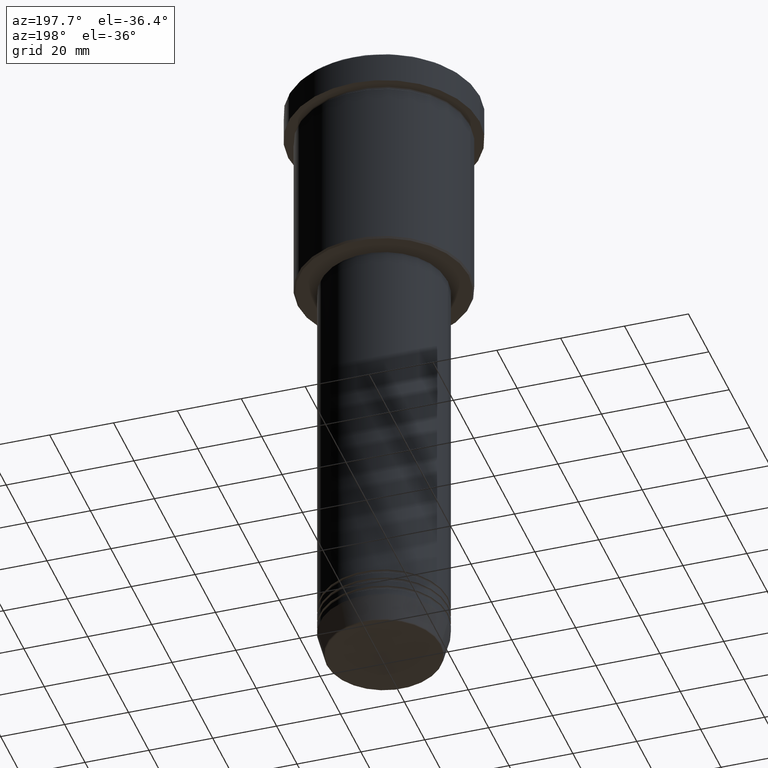
[diagram: clean part render]
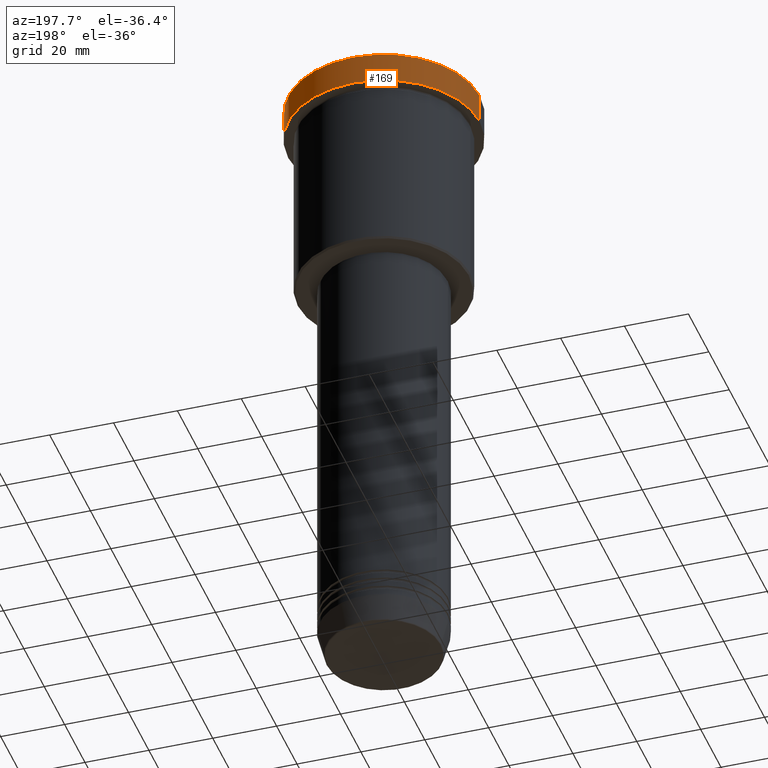
[diagram: same view with one face highlighted and labeled with its STEP entity id]
A machine part, auxiliary view. The second image highlights one B-rep face of the part: STEP entity #169.
In plain terms, the highlighted cylindrical surface (partial cylindrical patch) has radius 30 mm, axis along (-0, -0, 1).
Its self-contained STEP definition (entity closure, byte-faithful):
#1 = DIRECTION ( 'NONE',  ( 1.000000000000000000, 0.000000000000000000, 0.000000000000000000 ) ) ;
#12 = VECTOR ( 'NONE', #1084, 1000.000000000000000 ) ;
#35 = DIRECTION ( 'NONE',  ( -0.000000000000000000, -0.000000000000000000, 1.000000000000000000 ) ) ;
#37 = CIRCLE ( 'NONE', #486, 30.00000000000000000 ) ;
#38 = ORIENTED_EDGE ( 'NONE', *, *, #684, .T. ) ;
#68 = VERTEX_POINT ( 'NONE', #212 ) ;
#158 = VERTEX_POINT ( 'NONE', #289 ) ;
#169 = ADVANCED_FACE ( 'NONE', ( #474 ), #909, .T. ) ;
#184 = VERTEX_POINT ( 'NONE', #498 ) ;
#189 = EDGE_LOOP ( 'NONE', ( #1077, #38, #475, #644 ) ) ;
#212 = CARTESIAN_POINT ( 'NONE',  ( 30.00000000000000000, 0.000000000000000000, -0.5000000000000073275 ) ) ;
#289 = CARTESIAN_POINT ( 'NONE',  ( -30.00000000000000000, 3.673940397442059178E-15, -9.999999999999992895 ) ) ;
#343 = CARTESIAN_POINT ( 'NONE',  ( -30.00000000000000000, 3.673940397442059178E-15, 0.000000000000000000 ) ) ;
#474 = FACE_OUTER_BOUND ( 'NONE', #189, .T. ) ;
#475 = ORIENTED_EDGE ( 'NONE', *, *, #1111, .T. ) ;
#478 = DIRECTION ( 'NONE',  ( -0.000000000000000000, -0.000000000000000000, 1.000000000000000000 ) ) ;
#486 = AXIS2_PLACEMENT_3D ( 'NONE', #916, #555, #1 ) ;
#498 = CARTESIAN_POINT ( 'NONE',  ( -30.00000000000000000, 3.673940397442059178E-15, -0.5000000000000073275 ) ) ;
#506 = AXIS2_PLACEMENT_3D ( 'NONE', #622, #478, #751 ) ;
#539 = VECTOR ( 'NONE', #632, 1000.000000000000000 ) ;
#548 = LINE ( 'NONE', #726, #539 ) ;
#555 = DIRECTION ( 'NONE',  ( 0.000000000000000000, 0.000000000000000000, -1.000000000000000000 ) ) ;
#579 = DIRECTION ( 'NONE',  ( 1.000000000000000000, 0.000000000000000000, 0.000000000000000000 ) ) ;
#622 = CARTESIAN_POINT ( 'NONE',  ( 0.000000000000000000, 0.000000000000000000, -9.999999999999992895 ) ) ;
#632 = DIRECTION ( 'NONE',  ( -0.000000000000000000, -0.000000000000000000, 1.000000000000000000 ) ) ;
#644 = ORIENTED_EDGE ( 'NONE', *, *, #1110, .F. ) ;
#684 = EDGE_CURVE ( 'NONE', #158, #184, #871, .T. ) ;
#726 = CARTESIAN_POINT ( 'NONE',  ( 30.00000000000000000, 0.000000000000000000, 0.000000000000000000 ) ) ;
#751 = DIRECTION ( 'NONE',  ( 1.000000000000000000, 0.000000000000000000, 0.000000000000000000 ) ) ;
#784 = CARTESIAN_POINT ( 'NONE',  ( 30.00000000000000000, 0.000000000000000000, -9.999999999999992895 ) ) ;
#845 = CIRCLE ( 'NONE', #506, 30.00000000000000000 ) ;
#866 = VERTEX_POINT ( 'NONE', #784 ) ;
#871 = LINE ( 'NONE', #343, #12 ) ;
#909 = CYLINDRICAL_SURFACE ( 'NONE', #1009, 30.00000000000000000 ) ;
#916 = CARTESIAN_POINT ( 'NONE',  ( 0.000000000000000000, 0.000000000000000000, -0.5000000000000073275 ) ) ;
#1009 = AXIS2_PLACEMENT_3D ( 'NONE', #1103, #35, #579 ) ;
#1077 = ORIENTED_EDGE ( 'NONE', *, *, #1134, .T. ) ;
#1084 = DIRECTION ( 'NONE',  ( -0.000000000000000000, -0.000000000000000000, 1.000000000000000000 ) ) ;
#1103 = CARTESIAN_POINT ( 'NONE',  ( 0.000000000000000000, 0.000000000000000000, 0.000000000000000000 ) ) ;
#1110 = EDGE_CURVE ( 'NONE', #866, #68, #548, .T. ) ;
#1111 = EDGE_CURVE ( 'NONE', #184, #68, #37, .T. ) ;
#1134 = EDGE_CURVE ( 'NONE', #866, #158, #845, .T. ) ;